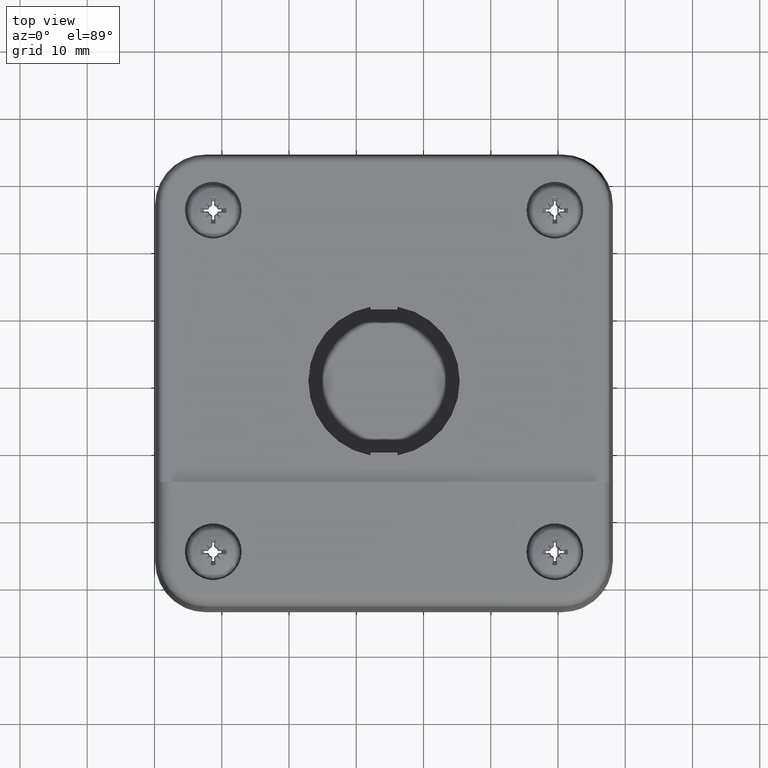
[diagram: clean part render]
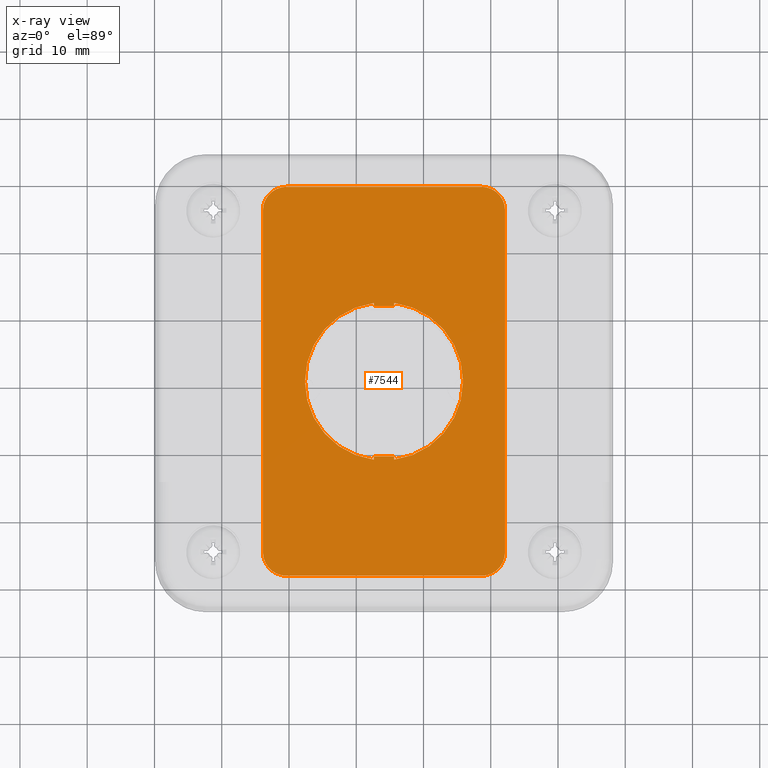
[diagram: x-ray — body ghosted, one internal face saturated and labeled with its STEP entity id]
A machine part, top view, then the same camera in x-ray: the body is ghosted and one INTERNAL B-rep face — a face not visible from any outside direction — is saturated and labeled: STEP entity #7544.
In plain terms, the highlighted planar face has unit normal (-0, 0, -1).
Its self-contained STEP definition (entity closure, byte-faithful):
#6084=CARTESIAN_POINT('',(-18.933605584055147,-27.638618122439304,2.899999999999998));
#6085=VERTEX_POINT('',#6084);
#6092=CARTESIAN_POINT('',(-15.433605584055147,-31.138618122439304,2.899999999999998));
#6093=VERTEX_POINT('',#6092);
#6094=CARTESIAN_POINT('',(-15.433605584055147,-27.638618122439304,2.899999999999998));
#6095=DIRECTION('',(0.0,0.0,-1.0));
#6096=DIRECTION('',(1.0,0.0,0.0));
#6097=AXIS2_PLACEMENT_3D('',#6094,#6095,#6096);
#6098=CIRCLE('',#6097,3.499999999999996);
#6099=EDGE_CURVE('',#6085,#6093,#6098,.F.);
#6855=CARTESIAN_POINT('',(-2.433605584055146,9.438962329751092,2.899999999999999));
#6856=VERTEX_POINT('',#6855);
#6857=CARTESIAN_POINT('',(-2.433605584055146,8.935100308944428,2.899999999999999));
#6858=VERTEX_POINT('',#6857);
#6859=CARTESIAN_POINT('',(-2.433605584055146,9.438962329751092,2.899999999999999));
#6860=DIRECTION('',(0.0,-1.0,0.0));
#6861=VECTOR('',#6860,0.503862020806665);
#6862=LINE('',#6859,#6861);
#6863=EDGE_CURVE('',#6856,#6858,#6862,.T.);
#6886=CARTESIAN_POINT('',(-2.433605584055150,-13.868761711862238,2.899999999999999));
#6887=VERTEX_POINT('',#6886);
#6888=CARTESIAN_POINT('',(-0.933605584055148,-2.214899691055574,2.899999999999999));
#6889=DIRECTION('',(0.0,0.0,-1.000000000000000));
#6890=DIRECTION('',(0.177777777777778,0.984070658910424,0.0));
#6891=AXIS2_PLACEMENT_3D('',#6888,#6889,#6890);
#6892=CIRCLE('',#6891,11.750000000000002);
#6893=EDGE_CURVE('',#6887,#6856,#6892,.T.);
#6911=CARTESIAN_POINT('',(-2.433605584055150,-13.364899691055570,2.899999999999999));
#6912=VERTEX_POINT('',#6911);
#6913=CARTESIAN_POINT('',(-2.433605584055150,-13.364899691055570,2.899999999999999));
#6914=DIRECTION('',(0.0,-1.0,0.0));
#6915=VECTOR('',#6914,0.503862020806668);
#6916=LINE('',#6913,#6915);
#6917=EDGE_CURVE('',#6912,#6887,#6916,.T.);
#6935=CARTESIAN_POINT('',(0.566394415944849,-13.364899691055573,2.899999999999999));
#6936=VERTEX_POINT('',#6935);
#6937=CARTESIAN_POINT('',(0.566394415944849,-13.364899691055573,2.899999999999999));
#6938=DIRECTION('',(-1.0,0.0,0.0));
#6939=VECTOR('',#6938,2.999999999999999);
#6940=LINE('',#6937,#6939);
#6941=EDGE_CURVE('',#6936,#6912,#6940,.T.);
#6959=CARTESIAN_POINT('',(0.566394415944849,-13.868761711862238,2.899999999999999));
#6960=VERTEX_POINT('',#6959);
#6961=CARTESIAN_POINT('',(0.566394415944849,-13.868761711862238,2.899999999999999));
#6962=DIRECTION('',(0.0,1.0,0.0));
#6963=VECTOR('',#6962,0.503862020806665);
#6964=LINE('',#6961,#6963);
#6965=EDGE_CURVE('',#6960,#6936,#6964,.T.);
#6983=CARTESIAN_POINT('',(0.566394415944854,9.438962329751089,2.899999999999999));
#6984=VERTEX_POINT('',#6983);
#6985=CARTESIAN_POINT('',(-0.933605584055148,-2.214899691055574,2.899999999999999));
#6986=DIRECTION('',(0.0,0.0,-1.000000000000000));
#6987=DIRECTION('',(-0.177777777777778,-0.984070658910424,0.0));
#6988=AXIS2_PLACEMENT_3D('',#6985,#6986,#6987);
#6989=CIRCLE('',#6988,11.749999999999998);
#6990=EDGE_CURVE('',#6984,#6960,#6989,.T.);
#7008=CARTESIAN_POINT('',(0.566394415944854,8.935100308944428,2.899999999999999));
#7009=VERTEX_POINT('',#7008);
#7010=CARTESIAN_POINT('',(0.566394415944854,8.935100308944428,2.899999999999999));
#7011=DIRECTION('',(0.0,1.0,0.0));
#7012=VECTOR('',#7011,0.503862020806661);
#7013=LINE('',#7010,#7012);
#7014=EDGE_CURVE('',#7009,#6984,#7013,.T.);
#7032=CARTESIAN_POINT('',(-2.433605584055146,8.935100308944428,2.899999999999999));
#7033=DIRECTION('',(1.0,0.0,0.0));
#7034=VECTOR('',#7033,2.999999999999999);
#7035=LINE('',#7032,#7034);
#7036=EDGE_CURVE('',#6858,#7009,#7035,.T.);
#7338=CARTESIAN_POINT('',(13.566394415944849,-31.138618122439304,2.899999999999998));
#7339=VERTEX_POINT('',#7338);
#7346=CARTESIAN_POINT('',(17.066394415944849,-27.638618122439304,2.899999999999998));
#7347=VERTEX_POINT('',#7346);
#7348=CARTESIAN_POINT('',(13.566394415944849,-27.638618122439304,2.899999999999998));
#7349=DIRECTION('',(0.0,0.0,-1.0));
#7350=DIRECTION('',(0.0,1.0,0.0));
#7351=AXIS2_PLACEMENT_3D('',#7348,#7349,#7350);
#7352=CIRCLE('',#7351,3.499999999999998);
#7353=EDGE_CURVE('',#7339,#7347,#7352,.F.);
#7378=CARTESIAN_POINT('',(17.066394415944846,23.208818740328169,2.899999999999998));
#7379=VERTEX_POINT('',#7378);
#7380=CARTESIAN_POINT('',(17.066394415944846,23.208818740328169,2.899999999999998));
#7381=DIRECTION('',(0.0,-1.0,0.0));
#7382=VECTOR('',#7381,50.847436862767474);
#7383=LINE('',#7380,#7382);
#7384=EDGE_CURVE('',#7347,#7379,#7383,.F.);
#7410=CARTESIAN_POINT('',(13.566394415944846,26.708818740328162,2.899999999999998));
#7411=VERTEX_POINT('',#7410);
#7412=CARTESIAN_POINT('',(13.566394415944846,23.208818740328169,2.899999999999998));
#7413=DIRECTION('',(0.0,0.0,-1.0));
#7414=DIRECTION('',(-1.0,0.0,0.0));
#7415=AXIS2_PLACEMENT_3D('',#7412,#7413,#7414);
#7416=CIRCLE('',#7415,3.499999999999998);
#7417=EDGE_CURVE('',#7379,#7411,#7416,.F.);
#7442=CARTESIAN_POINT('',(-15.433605584055158,26.708818740328162,2.899999999999998));
#7443=VERTEX_POINT('',#7442);
#7444=CARTESIAN_POINT('',(-15.433605584055158,26.708818740328162,2.899999999999998));
#7445=DIRECTION('',(1.0,0.0,0.0));
#7446=VECTOR('',#7445,29.000000000000004);
#7447=LINE('',#7444,#7446);
#7448=EDGE_CURVE('',#7411,#7443,#7447,.F.);
#7474=CARTESIAN_POINT('',(-18.933605584055158,23.208818740328169,2.899999999999998));
#7475=VERTEX_POINT('',#7474);
#7476=CARTESIAN_POINT('',(-15.433605584055158,23.208818740328169,2.899999999999998));
#7477=DIRECTION('',(0.0,0.0,-1.0));
#7478=DIRECTION('',(0.0,-1.0,0.0));
#7479=AXIS2_PLACEMENT_3D('',#7476,#7477,#7478);
#7480=CIRCLE('',#7479,3.499999999999996);
#7481=EDGE_CURVE('',#7443,#7475,#7480,.F.);
#7504=CARTESIAN_POINT('',(-18.933605584055147,-27.638618122439304,2.899999999999998));
#7505=DIRECTION('',(0.0,1.0,0.0));
#7506=VECTOR('',#7505,50.847436862767474);
#7507=LINE('',#7504,#7506);
#7508=EDGE_CURVE('',#7475,#6085,#7507,.F.);
#7514=CARTESIAN_POINT('',(-0.933605584055150,-2.214899691055566,2.899999999999999));
#7515=DIRECTION('',(0.0,0.0,1.0));
#7516=DIRECTION('',(1.0,0.0,0.0));
#7517=AXIS2_PLACEMENT_3D('',#7514,#7515,#7516);
#7518=PLANE('',#7517);
#7519=ORIENTED_EDGE('',*,*,#7508,.F.);
#7520=ORIENTED_EDGE('',*,*,#7481,.F.);
#7521=ORIENTED_EDGE('',*,*,#7448,.F.);
#7522=ORIENTED_EDGE('',*,*,#7417,.F.);
#7523=ORIENTED_EDGE('',*,*,#7384,.F.);
#7524=ORIENTED_EDGE('',*,*,#7353,.F.);
#7525=CARTESIAN_POINT('',(13.566394415944849,-31.138618122439304,2.899999999999998));
#7526=DIRECTION('',(-1.0,0.0,0.0));
#7527=VECTOR('',#7526,28.999999999999996);
#7528=LINE('',#7525,#7527);
#7529=EDGE_CURVE('',#6093,#7339,#7528,.F.);
#7530=ORIENTED_EDGE('',*,*,#7529,.F.);
#7531=ORIENTED_EDGE('',*,*,#6099,.F.);
#7532=EDGE_LOOP('',(#7519,#7520,#7521,#7522,#7523,#7524,#7530,#7531));
#7533=FACE_OUTER_BOUND('',#7532,.T.);
#7534=ORIENTED_EDGE('',*,*,#7036,.F.);
#7535=ORIENTED_EDGE('',*,*,#6863,.F.);
#7536=ORIENTED_EDGE('',*,*,#6893,.F.);
#7537=ORIENTED_EDGE('',*,*,#6917,.F.);
#7538=ORIENTED_EDGE('',*,*,#6941,.F.);
#7539=ORIENTED_EDGE('',*,*,#6965,.F.);
#7540=ORIENTED_EDGE('',*,*,#6990,.F.);
#7541=ORIENTED_EDGE('',*,*,#7014,.F.);
#7542=EDGE_LOOP('',(#7534,#7535,#7536,#7537,#7538,#7539,#7540,#7541));
#7543=FACE_BOUND('',#7542,.T.);
#7544=ADVANCED_FACE('',(#7533,#7543),#7518,.F.);